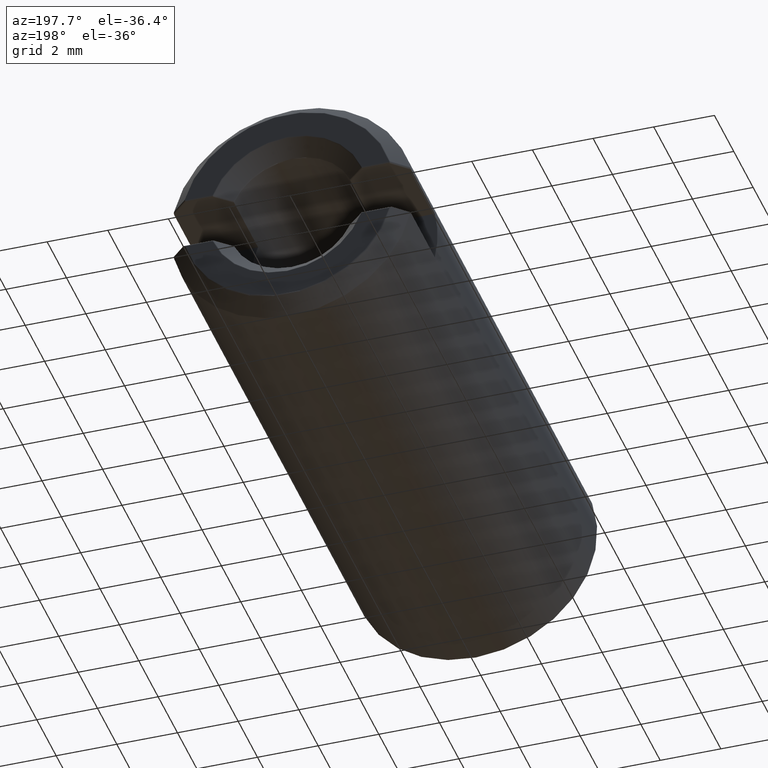
[diagram: clean part render]
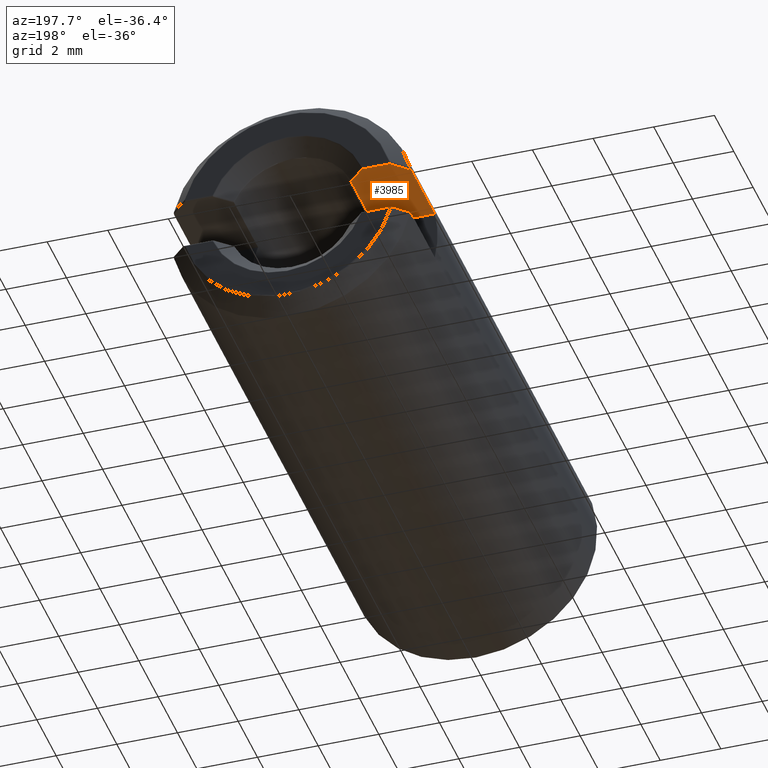
[diagram: same view with one face highlighted and labeled with its STEP entity id]
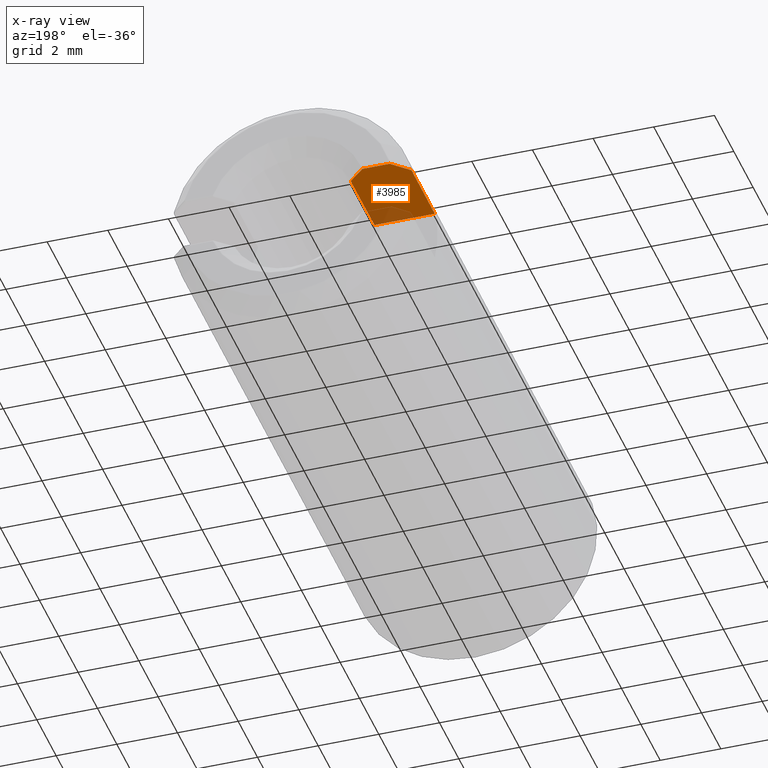
[diagram: x-ray of the same camera — body ghosted, the highlighted face saturated]
A machine part, auxiliary view. The second image highlights one B-rep face of the part: STEP entity #3985.
The next image is the same camera in x-ray: the body ghosted, the highlighted face saturated — about 16% of this face is hidden behind the body in this view.
In plain terms, the highlighted planar face has unit normal (0, 0, 1).
Its self-contained STEP definition (entity closure, byte-faithful):
#569 = LINE ( 'NONE', #10004, #2216 ) ;
#676 = CARTESIAN_POINT ( 'NONE',  ( -3.360871045630520600, 19.94999999999999900, 0.8500000000000004200 ) ) ;
#1426 = CARTESIAN_POINT ( 'NONE',  ( -3.360871045630520600, 19.94999999999999900, 0.8500000000000004200 ) ) ;
#1871 = CARTESIAN_POINT ( 'NONE',  ( -3.809506777524336300, 19.51497622256592400, 0.8500000000000004200 ) ) ;
#1996 = FACE_OUTER_BOUND ( 'NONE', #16906, .T. ) ;
#2058 = CARTESIAN_POINT ( 'NONE',  ( -2.457132475061128300, 19.94999999999999900, 0.8500000000000003100 ) ) ;
#2112 = ORIENTED_EDGE ( 'NONE', *, *, #16964, .T. ) ;
#2153 = EDGE_CURVE ( 'NONE', #5857, #6365, #3048, .T. ) ;
#2216 = VECTOR ( 'NONE', #3374, 1000.000000000000000 ) ;
#2911 = CARTESIAN_POINT ( 'NONE',  ( -3.908644266238617200, 19.41836673474506400, 0.8500000000000004200 ) ) ;
#3048 = LINE ( 'NONE', #2058, #12503 ) ;
#3091 = LINE ( 'NONE', #6071, #6370 ) ;
#3164 = EDGE_CURVE ( 'NONE', #10834, #11348, #569, .T. ) ;
#3179 = CARTESIAN_POINT ( 'NONE',  ( -3.610932241159238800, 19.70788748248757800, 0.8500000000000004200 ) ) ;
#3374 = DIRECTION ( 'NONE',  ( 0.0000000000000000000, 1.000000000000000000, 0.0000000000000000000 ) ) ;
#3985 = ADVANCED_FACE ( 'NONE', ( #1996 ), #15408, .F. ) ;
#5205 = CARTESIAN_POINT ( 'NONE',  ( -3.908644266238617200, 17.00000000000000000, 0.8500000000000004200 ) ) ;
#5857 = VERTEX_POINT ( 'NONE', #1426 ) ;
#5980 = AXIS2_PLACEMENT_3D ( 'NONE', #16653, #16888, #11563 ) ;
#6071 = CARTESIAN_POINT ( 'NONE',  ( 12.49999999999999800, 17.00000000000000000, 0.8499999999999984200 ) ) ;
#6074 = CARTESIAN_POINT ( 'NONE',  ( -2.461325752192560700, 19.94999999999999900, 0.8500000000000003100 ) ) ;
#6361 = EDGE_CURVE ( 'NONE', #13546, #6745, #16476, .T. ) ;
#6365 = VERTEX_POINT ( 'NONE', #13284 ) ;
#6370 = VECTOR ( 'NONE', #13034, 1000.000000000000000 ) ;
#6614 = CARTESIAN_POINT ( 'NONE',  ( -1.920286436967147300, 19.45002032792619300, 0.8500000000000002000 ) ) ;
#6744 = ORIENTED_EDGE ( 'NONE', *, *, #6361, .T. ) ;
#6745 = VERTEX_POINT ( 'NONE', #13329 ) ;
#7192 = CARTESIAN_POINT ( 'NONE',  ( -3.527666024969074800, 19.78868194586898400, 0.8500000000000004200 ) ) ;
#7398 = CARTESIAN_POINT ( 'NONE',  ( -2.117787020285274200, 19.63008507977690800, 0.8500000000000003100 ) ) ;
#8308 = ORIENTED_EDGE ( 'NONE', *, *, #8806, .F. ) ;
#8674 = ORIENTED_EDGE ( 'NONE', *, *, #3164, .T. ) ;
#8777 = CARTESIAN_POINT ( 'NONE',  ( -2.379734714731919400, 19.87337112092297900, 0.8500000000000003100 ) ) ;
#8806 = EDGE_CURVE ( 'NONE', #10834, #6745, #3091, .T. ) ;
#8840 = CARTESIAN_POINT ( 'NONE',  ( -1.920286436967147300, 19.45002032792619300, 0.8500000000000002000 ) ) ;
#9308 = DIRECTION ( 'NONE',  ( 0.0000000000000000000, -1.000000000000000000, 0.0000000000000000000 ) ) ;
#9749 = CARTESIAN_POINT ( 'NONE',  ( -3.710277310412726200, 19.61149146586550500, 0.8500000000000004200 ) ) ;
#10004 = CARTESIAN_POINT ( 'NONE',  ( -3.908644266238617200, 0.0000000000000000000, 0.8500000000000004200 ) ) ;
#10834 = VERTEX_POINT ( 'NONE', #5205 ) ;
#11291 = EDGE_CURVE ( 'NONE', #6365, #13546, #16789, .T. ) ;
#11348 = VERTEX_POINT ( 'NONE', #14855 ) ;
#11379 = CARTESIAN_POINT ( 'NONE',  ( -2.019342555962501800, 19.53971398603897900, 0.8500000000000002000 ) ) ;
#11563 = DIRECTION ( 'NONE',  ( 1.000000000000000000, 0.0000000000000000000, -1.214306433183765000E-016 ) ) ;
#12388 = CARTESIAN_POINT ( 'NONE',  ( -1.920286436967147300, 20.00000000000000000, 0.8500000000000002000 ) ) ;
#12503 = VECTOR ( 'NONE', #13848, 1000.000000000000000 ) ;
#12748 = CARTESIAN_POINT ( 'NONE',  ( -2.297921189293646600, 19.79697792691201400, 0.8500000000000003100 ) ) ;
#13034 = DIRECTION ( 'NONE',  ( 1.000000000000000000, -0.0000000000000000000, -1.214306433183765000E-016 ) ) ;
#13284 = CARTESIAN_POINT ( 'NONE',  ( -2.461325752192560700, 19.94999999999999900, 0.8500000000000003100 ) ) ;
#13329 = CARTESIAN_POINT ( 'NONE',  ( -1.920286436967146600, 17.00000000000000000, 0.8500000000000002000 ) ) ;
#13406 = ORIENTED_EDGE ( 'NONE', *, *, #11291, .T. ) ;
#13546 = VERTEX_POINT ( 'NONE', #6614 ) ;
#13848 = DIRECTION ( 'NONE',  ( 1.000000000000000000, -0.0000000000000000000, -1.214306433183765000E-016 ) ) ;
#14064 = VECTOR ( 'NONE', #9308, 1000.000000000000000 ) ;
#14652 = B_SPLINE_CURVE_WITH_KNOTS ( 'NONE', 3,
 ( #2911, #1871, #9749, #3179, #7192, #16436, #676 ),
 .UNSPECIFIED., .F., .F.,
 ( 4, 3, 4 ),
 ( 8.673617379884035500E-019, 0.0004152766707271781300, 0.0007633414115678846500 ),
 .UNSPECIFIED. ) ;
#14855 = CARTESIAN_POINT ( 'NONE',  ( -3.908644266238617200, 19.41836673474506400, 0.8500000000000004200 ) ) ;
#15285 = CARTESIAN_POINT ( 'NONE',  ( -2.215812044525621500, 19.72090446999042600, 0.8500000000000003100 ) ) ;
#15408 = PLANE ( 'NONE',  #5980 ) ;
#16436 = CARTESIAN_POINT ( 'NONE',  ( -3.444318478053537600, 19.86939271686922800, 0.8500000000000004200 ) ) ;
#16476 = LINE ( 'NONE', #12388, #14064 ) ;
#16653 = CARTESIAN_POINT ( 'NONE',  ( 12.49999999999999800, 17.00000000000000000, 0.8499999999999984200 ) ) ;
#16789 = B_SPLINE_CURVE_WITH_KNOTS ( 'NONE', 3,
 ( #6074, #8777, #12748, #15285, #7398, #11379, #8840 ),
 .UNSPECIFIED., .F., .F.,
 ( 4, 3, 4 ),
 ( 1.433280826459710200E-016, 0.0003358001526545682700, 0.0007366943400334867000 ),
 .UNSPECIFIED. ) ;
#16836 = ORIENTED_EDGE ( 'NONE', *, *, #2153, .T. ) ;
#16888 = DIRECTION ( 'NONE',  ( 1.214306433183765000E-016, 0.0000000000000000000, 1.000000000000000000 ) ) ;
#16906 = EDGE_LOOP ( 'NONE', ( #16836, #13406, #6744, #8308, #8674, #2112 ) ) ;
#16964 = EDGE_CURVE ( 'NONE', #11348, #5857, #14652, .T. ) ;